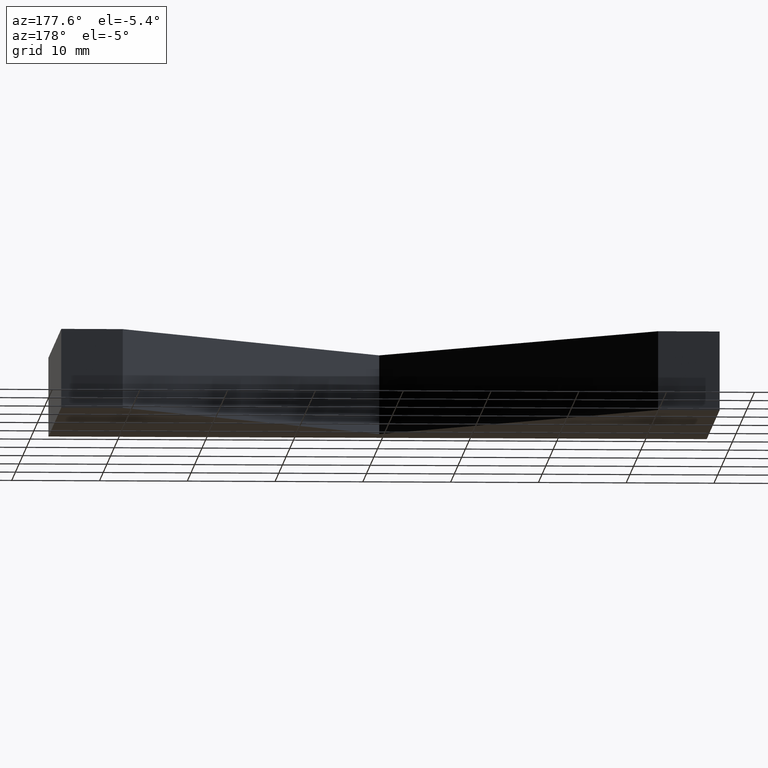
[diagram: clean part render]
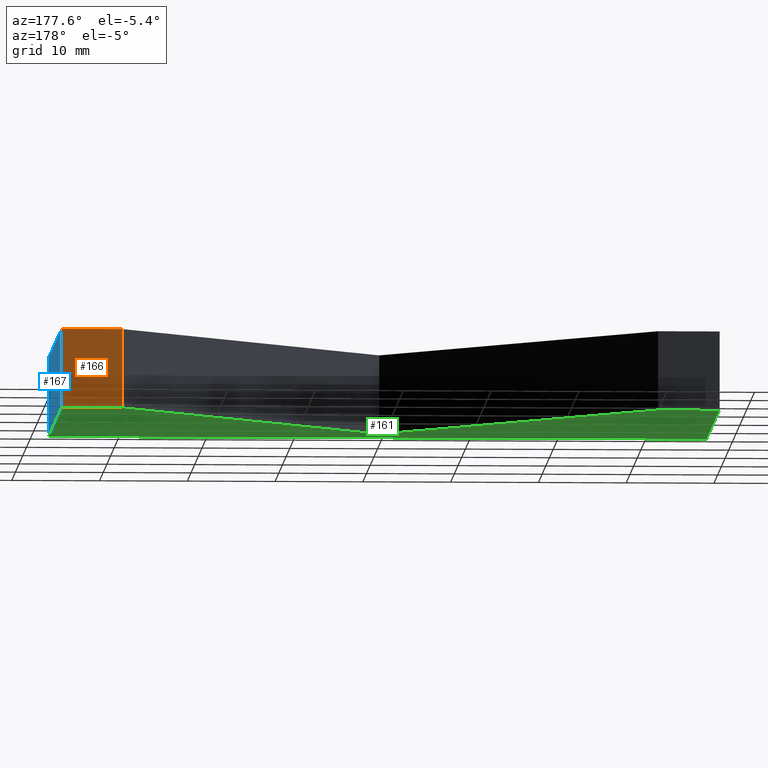
[diagram: same view with three faces highlighted in distinct colors, each labeled with its STEP entity id]
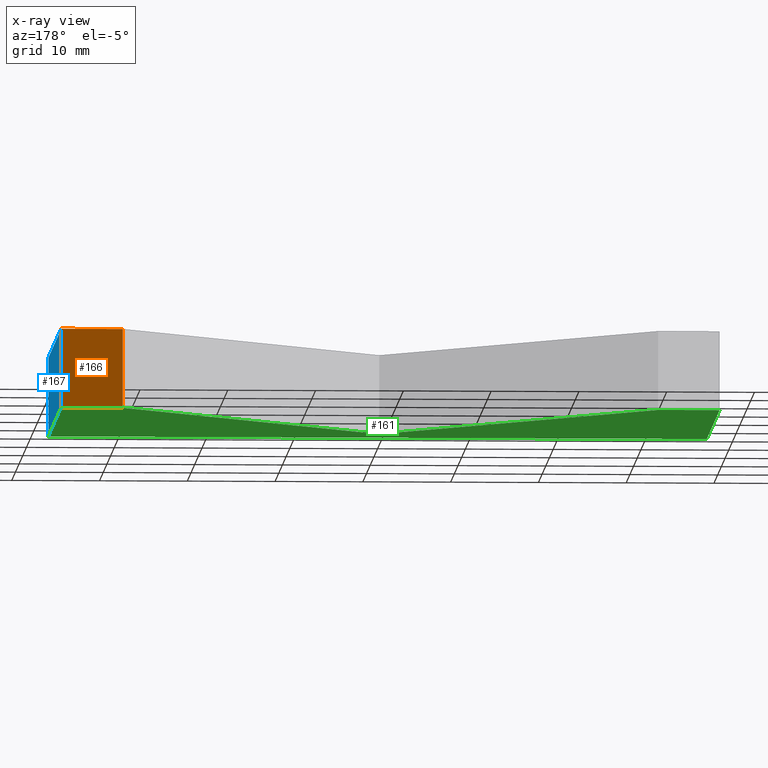
[diagram: x-ray of the same camera — body ghosted, the three highlighted faces saturated]
A machine part, auxiliary view with three faces highlighted in distinct colors.
The next image is the same camera in x-ray (body ghosted, the three faces saturated) — at least one of them is partly hidden behind the body in this view.
Their STEP definitions:

[orange] entity #166 — the highlighted planar face has unit normal (0, 1, 0).
#20=FACE_OUTER_BOUND('',#29,.T.);
#29=EDGE_LOOP('',(#133,#134,#135,#136));
#39=LINE('',#258,#60);
#48=LINE('',#276,#69);
#49=LINE('',#279,#70);
#50=LINE('',#280,#71);
#60=VECTOR('',#212,10.);
#69=VECTOR('',#229,10.);
#70=VECTOR('',#232,10.);
#71=VECTOR('',#233,10.);
#76=VERTEX_POINT('',#246);
#81=VERTEX_POINT('',#256);
#86=VERTEX_POINT('',#274);
#87=VERTEX_POINT('',#278);
#95=EDGE_CURVE('',#76,#81,#39,.T.);
#104=EDGE_CURVE('',#86,#81,#48,.T.);
#105=EDGE_CURVE('',#86,#87,#49,.T.);
#106=EDGE_CURVE('',#87,#76,#50,.T.);
#133=ORIENTED_EDGE('',*,*,#105,.T.);
#134=ORIENTED_EDGE('',*,*,#106,.T.);
#135=ORIENTED_EDGE('',*,*,#95,.T.);
#136=ORIENTED_EDGE('',*,*,#104,.F.);
#157=PLANE('',#198);
#166=ADVANCED_FACE('',(#20),#157,.T.);
#198=AXIS2_PLACEMENT_3D('',#277,#230,#231);
#212=DIRECTION('',(-1.,6.34413156928661E-16,0.));
#229=DIRECTION('',(0.,0.,-1.));
#230=DIRECTION('center_axis',(6.34413156928661E-16,1.,0.));
#231=DIRECTION('ref_axis',(0.,0.,1.));
#232=DIRECTION('',(1.,-6.34413156928661E-16,0.));
#233=DIRECTION('',(0.,0.,-1.));
#246=CARTESIAN_POINT('',(37.5,35.,-4.5));
#256=CARTESIAN_POINT('',(30.5,35.,-4.5));
#258=CARTESIAN_POINT('',(30.5,35.,-4.5));
#274=CARTESIAN_POINT('',(30.5,35.,4.5));
#276=CARTESIAN_POINT('',(30.5,35.,0.));
#277=CARTESIAN_POINT('Origin',(30.5,35.,0.));
#278=CARTESIAN_POINT('',(37.5,35.,4.5));
#279=CARTESIAN_POINT('',(30.5,35.,4.5));
#280=CARTESIAN_POINT('',(37.5,35.,0.));

[blue] entity #167 — the highlighted planar face has unit normal (1, 0, 0).
#21=FACE_OUTER_BOUND('',#30,.T.);
#30=EDGE_LOOP('',(#137,#138,#139,#140));
#33=LINE('',#247,#54);
#50=LINE('',#280,#71);
#51=LINE('',#283,#72);
#52=LINE('',#284,#73);
#54=VECTOR('',#206,10.);
#71=VECTOR('',#233,10.);
#72=VECTOR('',#236,10.);
#73=VECTOR('',#237,10.);
#75=VERTEX_POINT('',#245);
#76=VERTEX_POINT('',#246);
#87=VERTEX_POINT('',#278);
#88=VERTEX_POINT('',#282);
#89=EDGE_CURVE('',#75,#76,#33,.T.);
#106=EDGE_CURVE('',#87,#76,#50,.T.);
#107=EDGE_CURVE('',#87,#88,#51,.T.);
#108=EDGE_CURVE('',#75,#88,#52,.T.);
#137=ORIENTED_EDGE('',*,*,#107,.T.);
#138=ORIENTED_EDGE('',*,*,#108,.F.);
#139=ORIENTED_EDGE('',*,*,#89,.T.);
#140=ORIENTED_EDGE('',*,*,#106,.F.);
#158=PLANE('',#199);
#167=ADVANCED_FACE('',(#21),#158,.T.);
#199=AXIS2_PLACEMENT_3D('',#281,#234,#235);
#206=DIRECTION('',(0.,1.,0.));
#233=DIRECTION('',(0.,0.,-1.));
#234=DIRECTION('center_axis',(1.,0.,0.));
#235=DIRECTION('ref_axis',(0.,0.,-1.));
#236=DIRECTION('',(0.,-1.,0.));
#237=DIRECTION('',(0.,0.,1.));
#245=CARTESIAN_POINT('',(37.5,0.,-4.5));
#246=CARTESIAN_POINT('',(37.5,35.,-4.5));
#247=CARTESIAN_POINT('',(37.5,35.,-4.5));
#278=CARTESIAN_POINT('',(37.5,35.,4.5));
#280=CARTESIAN_POINT('',(37.5,35.,0.));
#281=CARTESIAN_POINT('Origin',(37.5,35.,0.));
#282=CARTESIAN_POINT('',(37.5,0.,4.5));
#283=CARTESIAN_POINT('',(37.5,35.,4.5));
#284=CARTESIAN_POINT('',(37.5,0.,0.));

[green] entity #161 — the highlighted planar face has unit normal (0, 0, 1).
#15=FACE_OUTER_BOUND('',#24,.T.);
#24=EDGE_LOOP('',(#110,#111,#112,#113,#114,#115,#116));
#33=LINE('',#247,#54);
#34=LINE('',#249,#55);
#35=LINE('',#251,#56);
#36=LINE('',#253,#57);
#37=LINE('',#255,#58);
#38=LINE('',#257,#59);
#39=LINE('',#258,#60);
#54=VECTOR('',#206,10.);
#55=VECTOR('',#207,10.);
#56=VECTOR('',#208,10.);
#57=VECTOR('',#209,10.);
#58=VECTOR('',#210,10.);
#59=VECTOR('',#211,10.);
#60=VECTOR('',#212,10.);
#75=VERTEX_POINT('',#245);
#76=VERTEX_POINT('',#246);
#77=VERTEX_POINT('',#248);
#78=VERTEX_POINT('',#250);
#79=VERTEX_POINT('',#252);
#80=VERTEX_POINT('',#254);
#81=VERTEX_POINT('',#256);
#89=EDGE_CURVE('',#75,#76,#33,.T.);
#90=EDGE_CURVE('',#77,#75,#34,.T.);
#91=EDGE_CURVE('',#78,#77,#35,.T.);
#92=EDGE_CURVE('',#79,#78,#36,.T.);
#93=EDGE_CURVE('',#80,#79,#37,.T.);
#94=EDGE_CURVE('',#81,#80,#38,.T.);
#95=EDGE_CURVE('',#76,#81,#39,.T.);
#110=ORIENTED_EDGE('',*,*,#89,.F.);
#111=ORIENTED_EDGE('',*,*,#90,.F.);
#112=ORIENTED_EDGE('',*,*,#91,.F.);
#113=ORIENTED_EDGE('',*,*,#92,.F.);
#114=ORIENTED_EDGE('',*,*,#93,.F.);
#115=ORIENTED_EDGE('',*,*,#94,.F.);
#116=ORIENTED_EDGE('',*,*,#95,.F.);
#152=PLANE('',#193);
#161=ADVANCED_FACE('',(#15),#152,.F.);
#193=AXIS2_PLACEMENT_3D('',#244,#204,#205);
#204=DIRECTION('center_axis',(0.,0.,1.));
#205=DIRECTION('ref_axis',(1.,0.,0.));
#206=DIRECTION('',(0.,1.,0.));
#207=DIRECTION('',(1.,0.,0.));
#208=DIRECTION('',(0.,-1.,0.));
#209=DIRECTION('',(-1.,-6.34413156928661E-16,0.));
#210=DIRECTION('',(-0.707106781186547,0.707106781186548,0.));
#211=DIRECTION('',(-0.707106781186547,-0.707106781186548,0.));
#212=DIRECTION('',(-1.,6.34413156928661E-16,0.));
#244=CARTESIAN_POINT('Origin',(0.,13.9389865276141,-4.5));
#245=CARTESIAN_POINT('',(37.5,0.,-4.5));
#246=CARTESIAN_POINT('',(37.5,35.,-4.5));
#247=CARTESIAN_POINT('',(37.5,35.,-4.5));
#248=CARTESIAN_POINT('',(-37.5,0.,-4.5));
#249=CARTESIAN_POINT('',(37.5,0.,-4.5));
#250=CARTESIAN_POINT('',(-37.5,35.,-4.5));
#251=CARTESIAN_POINT('',(-37.5,0.,-4.5));
#252=CARTESIAN_POINT('',(-30.5,35.,-4.5));
#253=CARTESIAN_POINT('',(-37.5,35.,-4.5));
#254=CARTESIAN_POINT('',(0.,4.5,-4.5));
#255=CARTESIAN_POINT('',(-30.5,35.,-4.5));
#256=CARTESIAN_POINT('',(30.5,35.,-4.5));
#257=CARTESIAN_POINT('',(0.,4.5,-4.5));
#258=CARTESIAN_POINT('',(30.5,35.,-4.5));